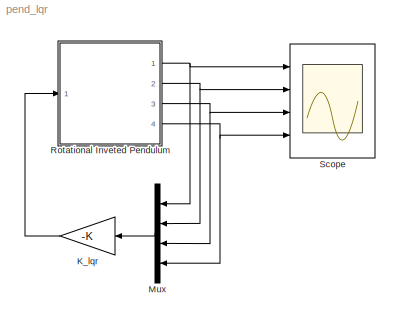
MODEL pend_lqr
KIND model
BLOCK [Gain] K_lqr
  Gain = -K
  Multiplication = Matrix(K*u)
  OutDataTypeStr = Inherit: Inherit via internal rule
  ParamDataTypeStr = Inherit: Inherit via internal rule
  SID = 18
  SaturateOnIntegerOverflow = off
BLOCK [Mux] Mux
  DisplayOption = bar
  Ports = [4, 1]
  SID = 17
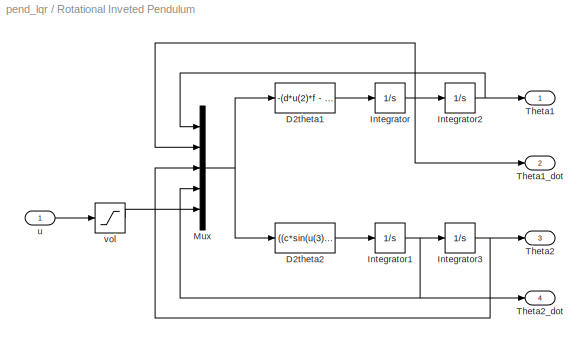
BLOCK [SubSystem] Rotational Inveted Pendulum
  Ports = [1, 4]
  RequestExecContextInheritance = off
  SID = 2
BLOCK [Fcn] Rotational Inveted Pendulum/D2theta1
  Expr = -(d*u(2)*f - e*f*u(5) + b*c2*u(4)*cos(u(3)) + b*u(4)^2*f*sin(u(3)) - b*h*cos(u(3))*sin(u(3)) - b*c*u(2)^2*cos(u(3))^2*sin(u(3)) + 2*c*u(2)*u(4)*f*cos(u(3))*sin(u(3)))/(a*f - b^2*cos(u(3))^2 + c*f*sin(u(3))^2)
  SID = 11
BLOCK [Fcn] Rotational Inveted Pendulum/D2theta2
  Expr = ((c*sin(u(3))^2 + a)*((c*sin(2*u(3))*u(2)^2)/2 - c2*u(4) + h*sin(u(3))))/(a*f - b^2*cos(u(3))^2 + c*f*sin(u(3))^2) - (b*cos(u(3))*(b*sin(u(3))*u(4)^2 + c*u(2)*sin(2*u(3))*u(4) + d*u(2) - e*u(5)))/(a*f - b^2*cos(u(3))^2 + c*f*sin(u(3))^2)
  SID = 10
BLOCK [Integrator] Rotational Inveted Pendulum/Integrator
  Ports = [1, 1]
  SID = 12
BLOCK [Integrator] Rotational Inveted Pendulum/Integrator1
  Ports = [1, 1]
  SID = 13
BLOCK [Integrator] Rotational Inveted Pendulum/Integrator2
  Ports = [1, 1]
  SID = 14
BLOCK [Integrator] Rotational Inveted Pendulum/Integrator3
  InitialCondition = pi/18
  Ports = [1, 1]
  SID = 15
BLOCK [Mux] Rotational Inveted Pendulum/Mux
  DisplayOption = bar
  Inputs = 5
  Ports = [5, 1]
  SID = 16
BLOCK [Outport] Rotational Inveted Pendulum/Theta1
  IconDisplay = Port number
  SID = 4
BLOCK [Outport] Rotational Inveted Pendulum/Theta1_dot
  IconDisplay = Port number
  Port = 2
  SID = 5
BLOCK [Outport] Rotational Inveted Pendulum/Theta2
  IconDisplay = Port number
  Port = 3
  SID = 6
BLOCK [Outport] Rotational Inveted Pendulum/Theta2_dot
  IconDisplay = Port number
  Port = 4
  SID = 7
BLOCK [Inport] Rotational Inveted Pendulum/u
  IconDisplay = Port number
  SID = 3
BLOCK [Saturate] Rotational Inveted Pendulum/vol
  InputPortMap = u0
  LowerLimit = -25
  Ports = [1, 1]
  SID = 9
  UpperLimit = 25
BLOCK [Scope] Scope
  Floating = off
  NumInputPorts = 4
  Ports = [4]
  SID = 8
  ScopeSpecificationString = Simulink.scopes.TimeScopeBlockCfg('CurrentConfiguration', extmgr.ConfigurationSet(extmgr.Configuration('Core','General UI',true,'FigureColor',[1 1 1]),extmgr.Configuration('Core','Source UI',true),extmgr.Configuration('Sources','WiredSimulink',true,'DataLogging',true,'DataLoggingDecimation','1','DataLoggingDecimateData',true),extmgr.Configuration('Visuals','Time Domain',true,'SerializedDisplays',{...<+4417ch>
LINE K_lqr:1 -> Rotational Inveted Pendulum:1
LINE Mux:1 -> K_lqr:1
LINE Rotational Inveted Pendulum/D2theta1:1 -> Rotational Inveted Pendulum/Integrator:1
LINE Rotational Inveted Pendulum/D2theta2:1 -> Rotational Inveted Pendulum/Integrator1:1
NET Rotational Inveted Pendulum/Integrator1:1 -> Rotational Inveted Pendulum/Integrator3:1, Rotational Inveted Pendulum/Mux:4, Rotational Inveted Pendulum/Theta2_dot:1
NET Rotational Inveted Pendulum/Integrator2:1 -> Rotational Inveted Pendulum/Mux:1, Rotational Inveted Pendulum/Theta1:1
NET Rotational Inveted Pendulum/Integrator3:1 -> Rotational Inveted Pendulum/Mux:3, Rotational Inveted Pendulum/Theta2:1
NET Rotational Inveted Pendulum/Integrator:1 -> Rotational Inveted Pendulum/Integrator2:1, Rotational Inveted Pendulum/Mux:2, Rotational Inveted Pendulum/Theta1_dot:1
NET Rotational Inveted Pendulum/Mux:1 -> Rotational Inveted Pendulum/D2theta1:1, Rotational Inveted Pendulum/D2theta2:1
LINE Rotational Inveted Pendulum/u:1 -> Rotational Inveted Pendulum/vol:1
LINE Rotational Inveted Pendulum/vol:1 -> Rotational Inveted Pendulum/Mux:5
NET Rotational Inveted Pendulum:1 -> Mux:1, Scope:1
NET Rotational Inveted Pendulum:2 -> Mux:2, Scope:2
NET Rotational Inveted Pendulum:3 -> Mux:3, Scope:3
NET Rotational Inveted Pendulum:4 -> Mux:4, Scope:4
note: NET lines group one-source signal fan-out (src -> all destinations, sorted); 1:1 wires keep LINE
